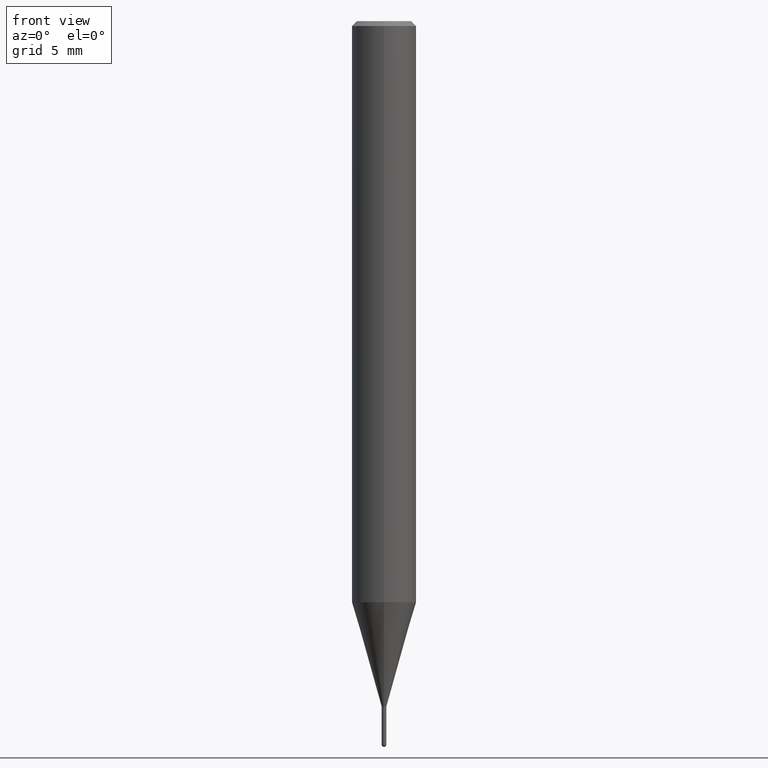
[diagram: clean part render]
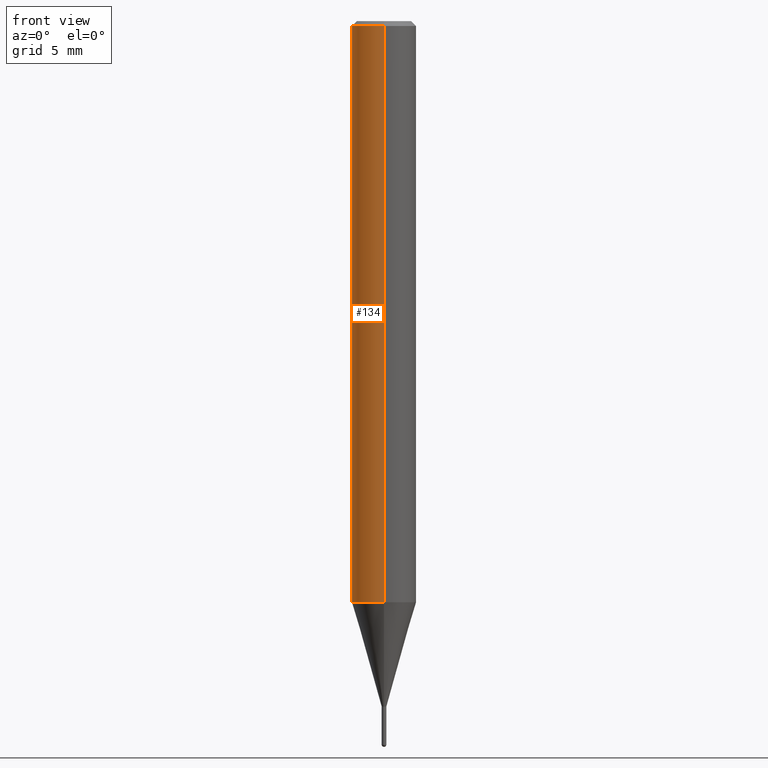
[diagram: same view with one face highlighted and labeled with its STEP entity id]
A machine part, front view. The second image highlights one B-rep face of the part: STEP entity #134.
In plain terms, the highlighted cylindrical surface (edge-blend (fillet) strip) has radius 2 mm, axis along (-0, -0, 1).
Its self-contained STEP definition (entity closure, byte-faithful):
#94=EDGE_CURVE('',#128,#178,#235,.T.);
#112=VERTEX_POINT('',#254);
#128=VERTEX_POINT('',#273);
#134=ADVANCED_FACE('',(#280),#281,.T.);
#146=EDGE_CURVE('',#112,#128,#294,.T.);
#150=EDGE_CURVE('',#212,#112,#299,.T.);
#178=VERTEX_POINT('',#329);
#196=EDGE_CURVE('',#212,#178,#351,.T.);
#212=VERTEX_POINT('',#370);
#235=LINE('',#386,#387);
#254=CARTESIAN_POINT('',(2.44921270764475E-016,-2.0,-0.299999999999997));
#273=CARTESIAN_POINT('',(0.0,2.0,-0.299999999999997));
#280=FACE_OUTER_BOUND('',#445,.T.);
#281=CYLINDRICAL_SURFACE('',#446,2.0);
#294=CIRCLE('',#462,2.0);
#299=LINE('',#468,#469);
#329=CARTESIAN_POINT('',(0.0,2.0,-36.031));
#351=CIRCLE('',#534,2.0);
#370=CARTESIAN_POINT('',(2.44921270764475E-016,-2.0,-36.031));
#386=CARTESIAN_POINT('',(-2.44921270764475E-016,2.0,-18.1655));
#387=VECTOR('',#559,1.0);
#445=EDGE_LOOP('',(#618,#619,#620,#621));
#446=AXIS2_PLACEMENT_3D('',#622,#623,#624);
#462=AXIS2_PLACEMENT_3D('',#637,#638,#639);
#468=CARTESIAN_POINT('',(2.44921270764475E-016,-2.0,-18.1655));
#469=VECTOR('',#648,1.0);
#534=AXIS2_PLACEMENT_3D('',#710,#711,#712);
#559=DIRECTION('',(0.0,0.0,-1.0));
#618=ORIENTED_EDGE('',*,*,#94,.T.);
#619=ORIENTED_EDGE('',*,*,#196,.F.);
#620=ORIENTED_EDGE('',*,*,#150,.T.);
#621=ORIENTED_EDGE('',*,*,#146,.T.);
#622=CARTESIAN_POINT('',(0.0,0.0,-18.1655));
#623=DIRECTION('',(-0.0,-0.0,1.0));
#624=DIRECTION('',(0.0,1.0,0.0));
#637=CARTESIAN_POINT('',(0.0,0.0,-0.299999999999997));
#638=DIRECTION('',(0.0,0.0,-1.0));
#639=DIRECTION('',(0.0,1.0,0.0));
#648=DIRECTION('',(-0.0,-0.0,1.0));
#710=CARTESIAN_POINT('',(0.0,0.0,-36.031));
#711=DIRECTION('',(0.0,0.0,-1.0));
#712=DIRECTION('',(0.0,1.0,0.0));